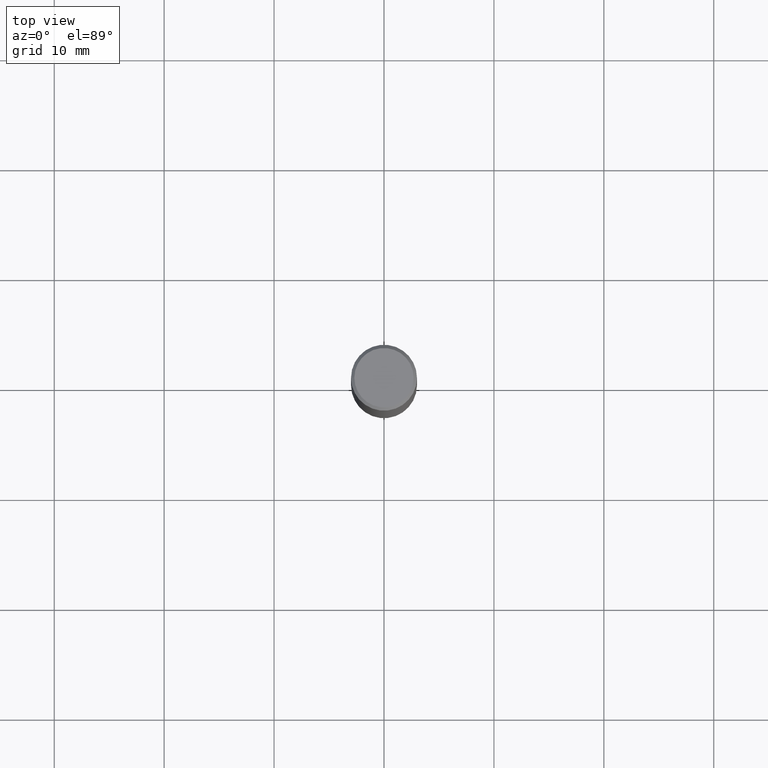
[diagram: clean part render]
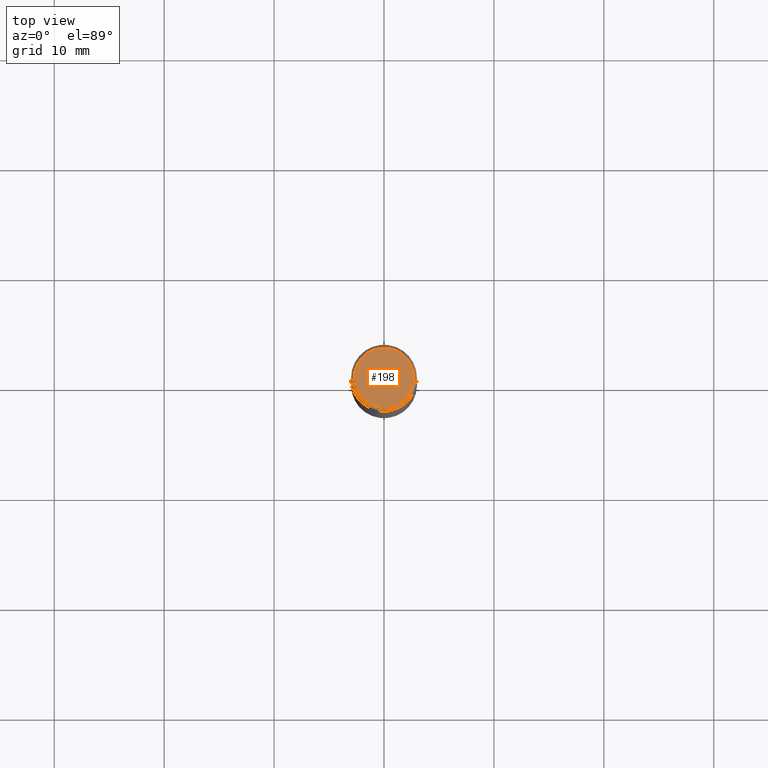
[diagram: same view with one face highlighted and labeled with its STEP entity id]
A machine part, top view. The second image highlights one B-rep face of the part: STEP entity #198.
In plain terms, the highlighted planar face has unit normal (-0, -0, 1).
Its self-contained STEP definition (entity closure, byte-faithful):
#158 = VERTEX_POINT('', #159);
#159 = CARTESIAN_POINT('', (-2.7, 1.65327317884893E-16, 0.));
#165 = EDGE_CURVE('', #158, #158, #166, .T.);
#166 = CIRCLE('', #167, 2.7);
#167 = AXIS2_PLACEMENT_3D('', #168, #169, #170);
#168 = CARTESIAN_POINT('', (6.74700668366753E-80, -4.13135006948962E-96, 0.));
#169 = DIRECTION('', (3.74939945665464E-33, 6.12323399573677E-17, -1.));
#170 = DIRECTION('', (-1., 6.12323399573677E-17, 0.));
#198 = ADVANCED_FACE('', (#199), #202, .T.);
#199 = FACE_OUTER_BOUND('', #200, .T.);
#200 = EDGE_LOOP('', (#201));
#201 = ORIENTED_EDGE('', *, *, #165, .F.);
#202 = PLANE('', #203);
#203 = AXIS2_PLACEMENT_3D('', #204, #205, #206);
#204 = CARTESIAN_POINT('', (4.20021428024809, -4.20021428024809, 1.07962619604318E-14));
#205 = DIRECTION('', (-2.63163976207445E-15, -6.12323399573677E-17, 1.));
#206 = DIRECTION('', (0., 1., 6.12323399573677E-17));